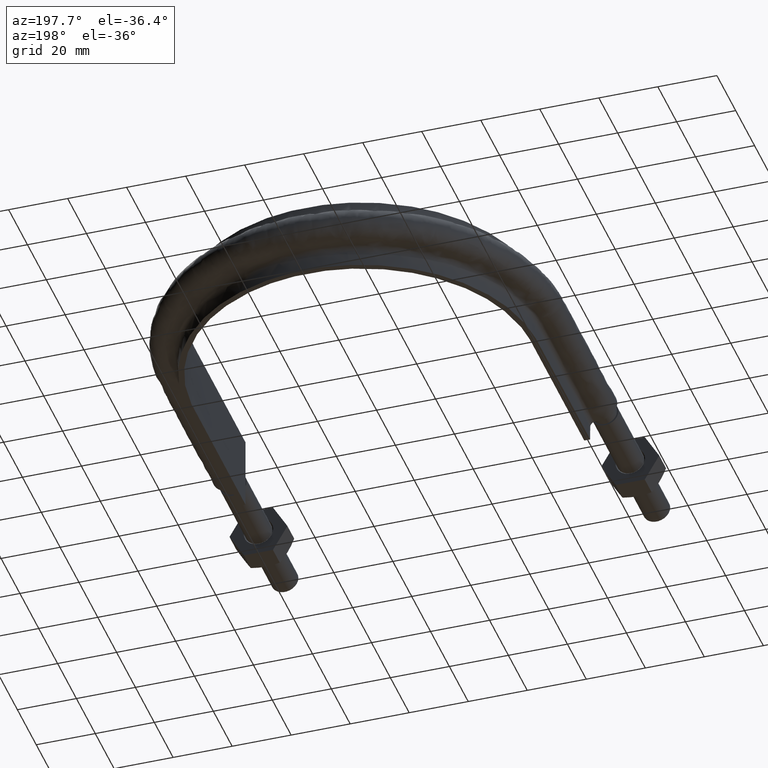
[diagram: clean part render]
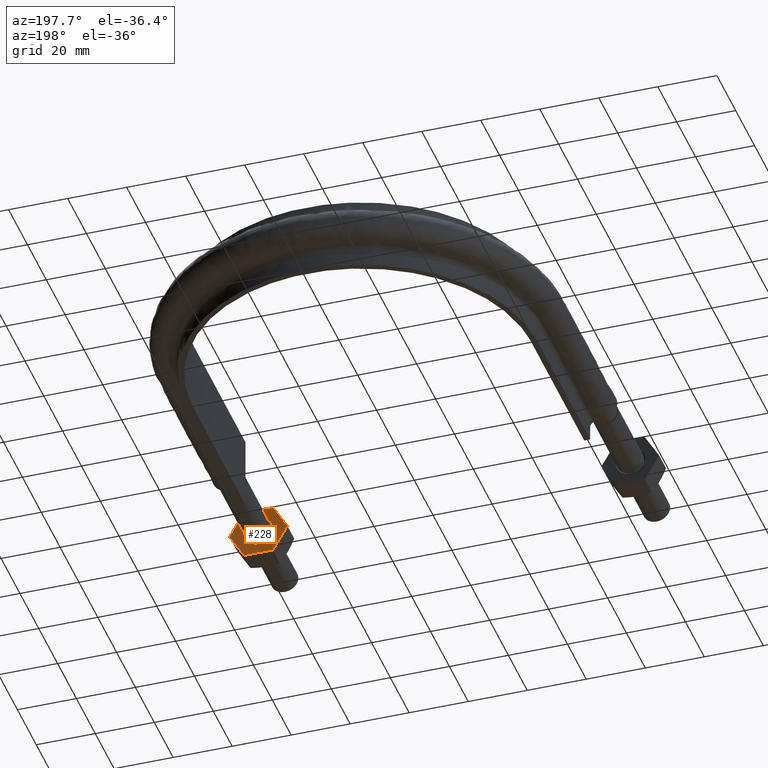
[diagram: same view with one face highlighted and labeled with its STEP entity id]
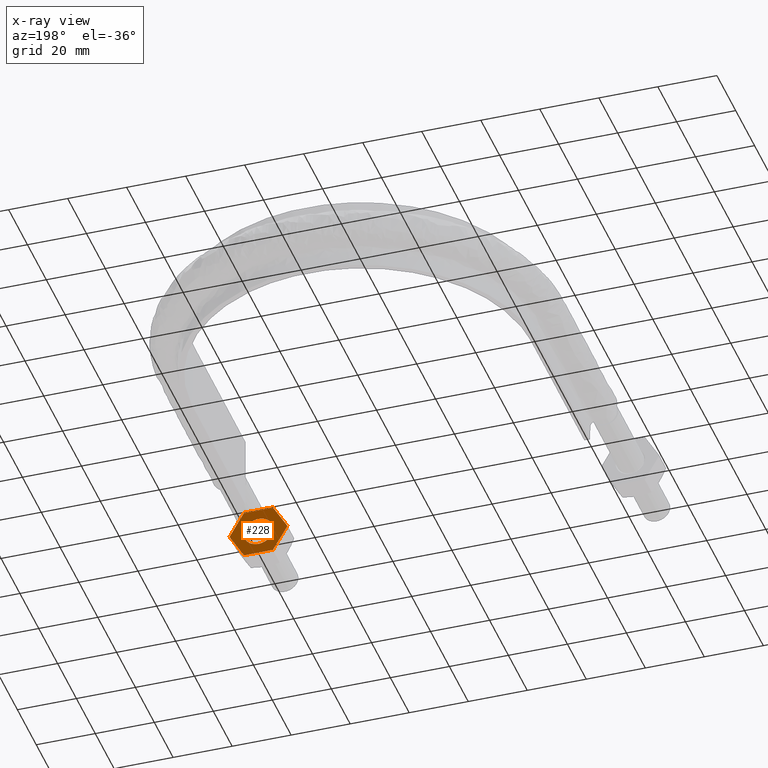
[diagram: x-ray of the same camera — body ghosted, the highlighted face saturated]
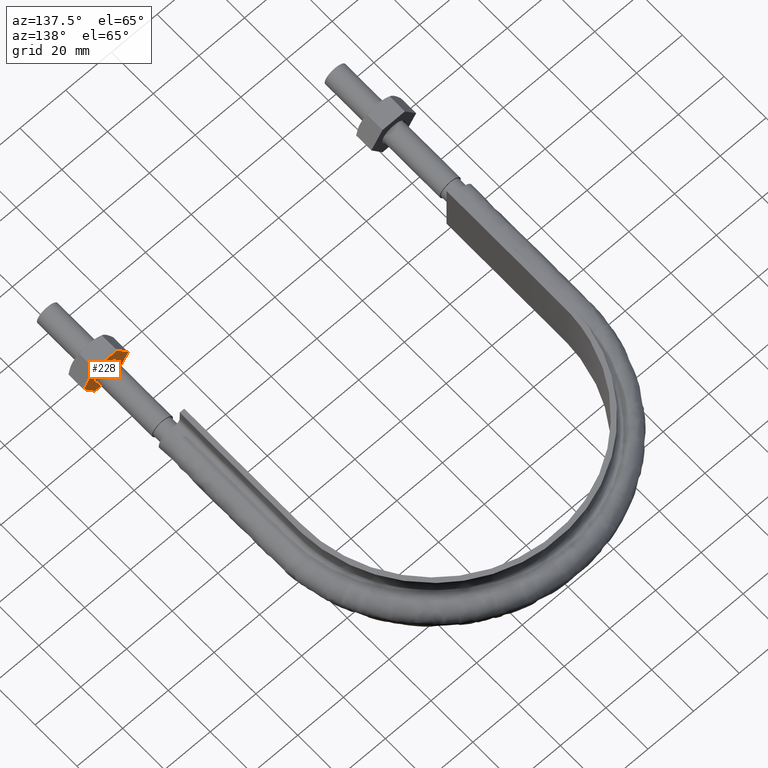
[diagram: same view with one face highlighted and labeled with its STEP entity id]
A machine part, auxiliary view. The second image highlights one B-rep face of the part: STEP entity #228.
The next image is the same camera in x-ray: the body ghosted, the highlighted face saturated — about 0% of this face is hidden behind the body in this view.
A second angle (auxiliary view) of the same face is appended — the face is thin or edge-on in the first view.
In plain terms, the highlighted planar face has unit normal (-0, -1, -0).
Its self-contained STEP definition (entity closure, byte-faithful):
#228 = ADVANCED_FACE( '', ( #313, #314 ), #315, .F. );
#313 = FACE_OUTER_BOUND( '', #480, .T. );
#314 = FACE_BOUND( '', #481, .T. );
#315 = PLANE( '', #482 );
#480 = EDGE_LOOP( '', ( #1350, #1351, #1352, #1353, #1354, #1355, #1356, #1357, #1358, #1359, #1360, #1361 ) );
#481 = EDGE_LOOP( '', ( #1362 ) );
#482 = AXIS2_PLACEMENT_3D( '', #1363, #1364, #1365 );
#1350 = ORIENTED_EDGE( '', *, *, #1840, .T. );
#1351 = ORIENTED_EDGE( '', *, *, #1833, .T. );
#1352 = ORIENTED_EDGE( '', *, *, #1845, .T. );
#1353 = ORIENTED_EDGE( '', *, *, #1846, .T. );
#1354 = ORIENTED_EDGE( '', *, *, #1847, .T. );
#1355 = ORIENTED_EDGE( '', *, *, #1848, .T. );
#1356 = ORIENTED_EDGE( '', *, *, #1849, .T. );
#1357 = ORIENTED_EDGE( '', *, *, #1850, .T. );
#1358 = ORIENTED_EDGE( '', *, *, #1851, .T. );
#1359 = ORIENTED_EDGE( '', *, *, #1824, .T. );
#1360 = ORIENTED_EDGE( '', *, *, #1829, .T. );
#1361 = ORIENTED_EDGE( '', *, *, #1839, .T. );
#1362 = ORIENTED_EDGE( '', *, *, #1852, .F. );
#1363 = CARTESIAN_POINT( '', ( 53.2000000000000, 28.0000000000000, 2.44921270764476E-016 ) );
#1364 = DIRECTION( '', ( -2.44921270764475E-016, -1.00000000000000, -6.12303176911189E-017 ) );
#1365 = DIRECTION( '', ( -1.00000000000000, 2.44921270764475E-016, 0.000000000000000 ) );
#1824 = EDGE_CURVE( '', #1982, #1980, #1983, .T. );
#1829 = EDGE_CURVE( '', #1980, #1990, #1991, .F. );
#1833 = EDGE_CURVE( '', #1997, #1995, #1998, .T. );
#1839 = EDGE_CURVE( '', #1990, #2004, #2006, .T. );
#1840 = EDGE_CURVE( '', #2004, #1997, #2007, .F. );
#1845 = EDGE_CURVE( '', #1995, #2015, #2016, .F. );
#1846 = EDGE_CURVE( '', #2015, #2017, #2018, .T. );
#1847 = EDGE_CURVE( '', #2017, #2019, #2020, .F. );
#1848 = EDGE_CURVE( '', #2019, #2021, #2022, .T. );
#1849 = EDGE_CURVE( '', #2021, #2023, #2024, .F. );
#1850 = EDGE_CURVE( '', #2023, #2025, #2026, .T. );
#1851 = EDGE_CURVE( '', #2025, #1982, #2027, .F. );
#1852 = EDGE_CURVE( '', #2028, #2028, #2029, .F. );
#1980 = VERTEX_POINT( '', #2246 );
#1982 = VERTEX_POINT( '', #2249 );
#1983 = LINE( '', #2250, #2251 );
#1990 = VERTEX_POINT( '', #2264 );
#1991 = CIRCLE( '', #2265, 9.80000000000000 );
#1995 = VERTEX_POINT( '', #2275 );
#1997 = VERTEX_POINT( '', #2278 );
#1998 = LINE( '', #2279, #2280 );
#2004 = VERTEX_POINT( '', #2292 );
#2006 = LINE( '', #2295, #2296 );
#2007 = CIRCLE( '', #2297, 9.80000000000000 );
#2015 = VERTEX_POINT( '', #2315 );
#2016 = CIRCLE( '', #2316, 9.80000000000000 );
#2017 = VERTEX_POINT( '', #2317 );
#2018 = LINE( '', #2318, #2319 );
#2019 = VERTEX_POINT( '', #2320 );
#2020 = CIRCLE( '', #2321, 9.80000000000000 );
#2021 = VERTEX_POINT( '', #2322 );
#2022 = LINE( '', #2323, #2324 );
#2023 = VERTEX_POINT( '', #2325 );
#2024 = CIRCLE( '', #2326, 9.80000000000000 );
#2025 = VERTEX_POINT( '', #2327 );
#2026 = LINE( '', #2328, #2329 );
#2027 = CIRCLE( '', #2330, 9.80000000000000 );
#2028 = VERTEX_POINT( '', #2331 );
#2029 = CIRCLE( '', #2332, 5.00000000000000 );
#2246 = CARTESIAN_POINT( '', ( 53.2000343881808, 28.0000000000000, -0.0259616479013421 ) );
#2249 = CARTESIAN_POINT( '', ( 58.0775337474837, 28.0000000000000, -8.47403835209864 ) );
#2250 = CARTESIAN_POINT( '', ( 53.1887840678323, 28.0000000000000, -0.00647552145624266 ) );
#2251 = VECTOR( '', #2862, 1000.00000000000 );
#2264 = CARTESIAN_POINT( '', ( 53.2000343881808, 28.0000000000000, 0.0259616479014865 ) );
#2265 = AXIS2_PLACEMENT_3D( '', #2870, #2871, #2872 );
#2275 = CARTESIAN_POINT( '', ( 67.8774993593029, 28.0000000000000, 8.50000000000000 ) );
#2278 = CARTESIAN_POINT( '', ( 58.1225006406971, 28.0000000000000, 8.50000000000000 ) );
#2279 = CARTESIAN_POINT( '', ( 53.2000000000000, 28.0000000000000, 8.50000000000000 ) );
#2280 = VECTOR( '', #2875, 1000.00000000000 );
#2292 = CARTESIAN_POINT( '', ( 58.0775337474836, 28.0000000000000, 8.47403835209856 ) );
#2295 = CARTESIAN_POINT( '', ( 53.1887840678322, 28.0000000000000, 0.00647552145627698 ) );
#2296 = VECTOR( '', #2884, 1000.00000000000 );
#2297 = AXIS2_PLACEMENT_3D( '', #2885, #2886, #2887 );
#2315 = CARTESIAN_POINT( '', ( 67.9224662525163, 28.0000000000000, 8.47403835209863 ) );
#2316 = AXIS2_PLACEMENT_3D( '', #2894, #2895, #2896 );
#2317 = CARTESIAN_POINT( '', ( 72.7999656118192, 28.0000000000000, 0.0259616479013477 ) );
#2318 = CARTESIAN_POINT( '', ( 67.9112159321677, 28.0000000000000, 8.49352447854374 ) );
#2319 = VECTOR( '', #2897, 1000.00000000000 );
#2320 = CARTESIAN_POINT( '', ( 72.7999656118192, 28.0000000000000, -0.0259616479013070 ) );
#2321 = AXIS2_PLACEMENT_3D( '', #2898, #2899, #2900 );
#2322 = CARTESIAN_POINT( '', ( 67.9224662525162, 28.0000000000000, -8.47403835209866 ) );
#2323 = CARTESIAN_POINT( '', ( 67.9112159321677, 28.0000000000000, -8.49352447854373 ) );
#2324 = VECTOR( '', #2901, 1000.00000000000 );
#2325 = CARTESIAN_POINT( '', ( 67.8774993593029, 28.0000000000000, -8.50000000000000 ) );
#2326 = AXIS2_PLACEMENT_3D( '', #2902, #2903, #2904 );
#2327 = CARTESIAN_POINT( '', ( 58.1225006406971, 28.0000000000000, -8.50000000000000 ) );
#2328 = CARTESIAN_POINT( '', ( 53.2000000000000, 28.0000000000000, -8.50000000000000 ) );
#2329 = VECTOR( '', #2905, 1000.00000000000 );
#2330 = AXIS2_PLACEMENT_3D( '', #2906, #2907, #2908 );
#2331 = CARTESIAN_POINT( '', ( 68.0000000000000, 28.0000000000000, 2.44921270764475E-016 ) );
#2332 = AXIS2_PLACEMENT_3D( '', #2909, #2910, #2911 );
#2862 = DIRECTION( '', ( -0.500000000000000, 6.94336247799368E-017, 0.866025403784439 ) );
#2870 = CARTESIAN_POINT( '', ( 63.0000000000000, 28.0000000000000, 2.44921270764476E-016 ) );
#2871 = DIRECTION( '', ( -2.44921270764475E-016, -1.00000000000000, -6.12303176911189E-017 ) );
#2872 = DIRECTION( '', ( 1.00000000000000, -2.44921270764475E-016, 0.000000000000000 ) );
#2875 = DIRECTION( '', ( 1.00000000000000, -2.44921270764475E-016, 4.37905770101505E-047 ) );
#2884 = DIRECTION( '', ( 0.500000000000000, -1.75487645984538E-016, 0.866025403784439 ) );
#2885 = CARTESIAN_POINT( '', ( 63.0000000000000, 28.0000000000000, 2.44921270764476E-016 ) );
#2886 = DIRECTION( '', ( -2.44921270764475E-016, -1.00000000000000, -6.12303176911189E-017 ) );
#2887 = DIRECTION( '', ( 1.00000000000000, -2.44921270764475E-016, 0.000000000000000 ) );
#2894 = CARTESIAN_POINT( '', ( 63.0000000000000, 28.0000000000000, 2.44921270764476E-016 ) );
#2895 = DIRECTION( '', ( -2.44921270764475E-016, -1.00000000000000, -6.12303176911189E-017 ) );
#2896 = DIRECTION( '', ( 1.00000000000000, -2.44921270764475E-016, 0.000000000000000 ) );
#2897 = DIRECTION( '', ( 0.500000000000000, -6.94336247799367E-017, -0.866025403784439 ) );
#2898 = CARTESIAN_POINT( '', ( 63.0000000000000, 28.0000000000000, 2.44921270764476E-016 ) );
#2899 = DIRECTION( '', ( -2.44921270764475E-016, -1.00000000000000, -6.12303176911189E-017 ) );
#2900 = DIRECTION( '', ( 1.00000000000000, -2.44921270764475E-016, 0.000000000000000 ) );
#2901 = DIRECTION( '', ( -0.500000000000000, 1.75487645984538E-016, -0.866025403784439 ) );
#2902 = CARTESIAN_POINT( '', ( 63.0000000000000, 28.0000000000000, 2.44921270764476E-016 ) );
#2903 = DIRECTION( '', ( -2.44921270764475E-016, -1.00000000000000, -6.12303176911189E-017 ) );
#2904 = DIRECTION( '', ( 1.00000000000000, -2.44921270764475E-016, 0.000000000000000 ) );
#2905 = DIRECTION( '', ( -1.00000000000000, 2.44921270764475E-016, 1.49966072182214E-032 ) );
#2906 = CARTESIAN_POINT( '', ( 63.0000000000000, 28.0000000000000, 2.44921270764476E-016 ) );
#2907 = DIRECTION( '', ( -2.44921270764475E-016, -1.00000000000000, -6.12303176911189E-017 ) );
#2908 = DIRECTION( '', ( 1.00000000000000, -2.44921270764475E-016, 0.000000000000000 ) );
#2909 = CARTESIAN_POINT( '', ( 63.0000000000000, 28.0000000000000, 2.44921270764475E-016 ) );
#2910 = DIRECTION( '', ( -2.44921270764475E-016, -1.00000000000000, -6.12303176911189E-017 ) );
#2911 = DIRECTION( '', ( 1.00000000000000, -2.44921270764475E-016, 0.000000000000000 ) );